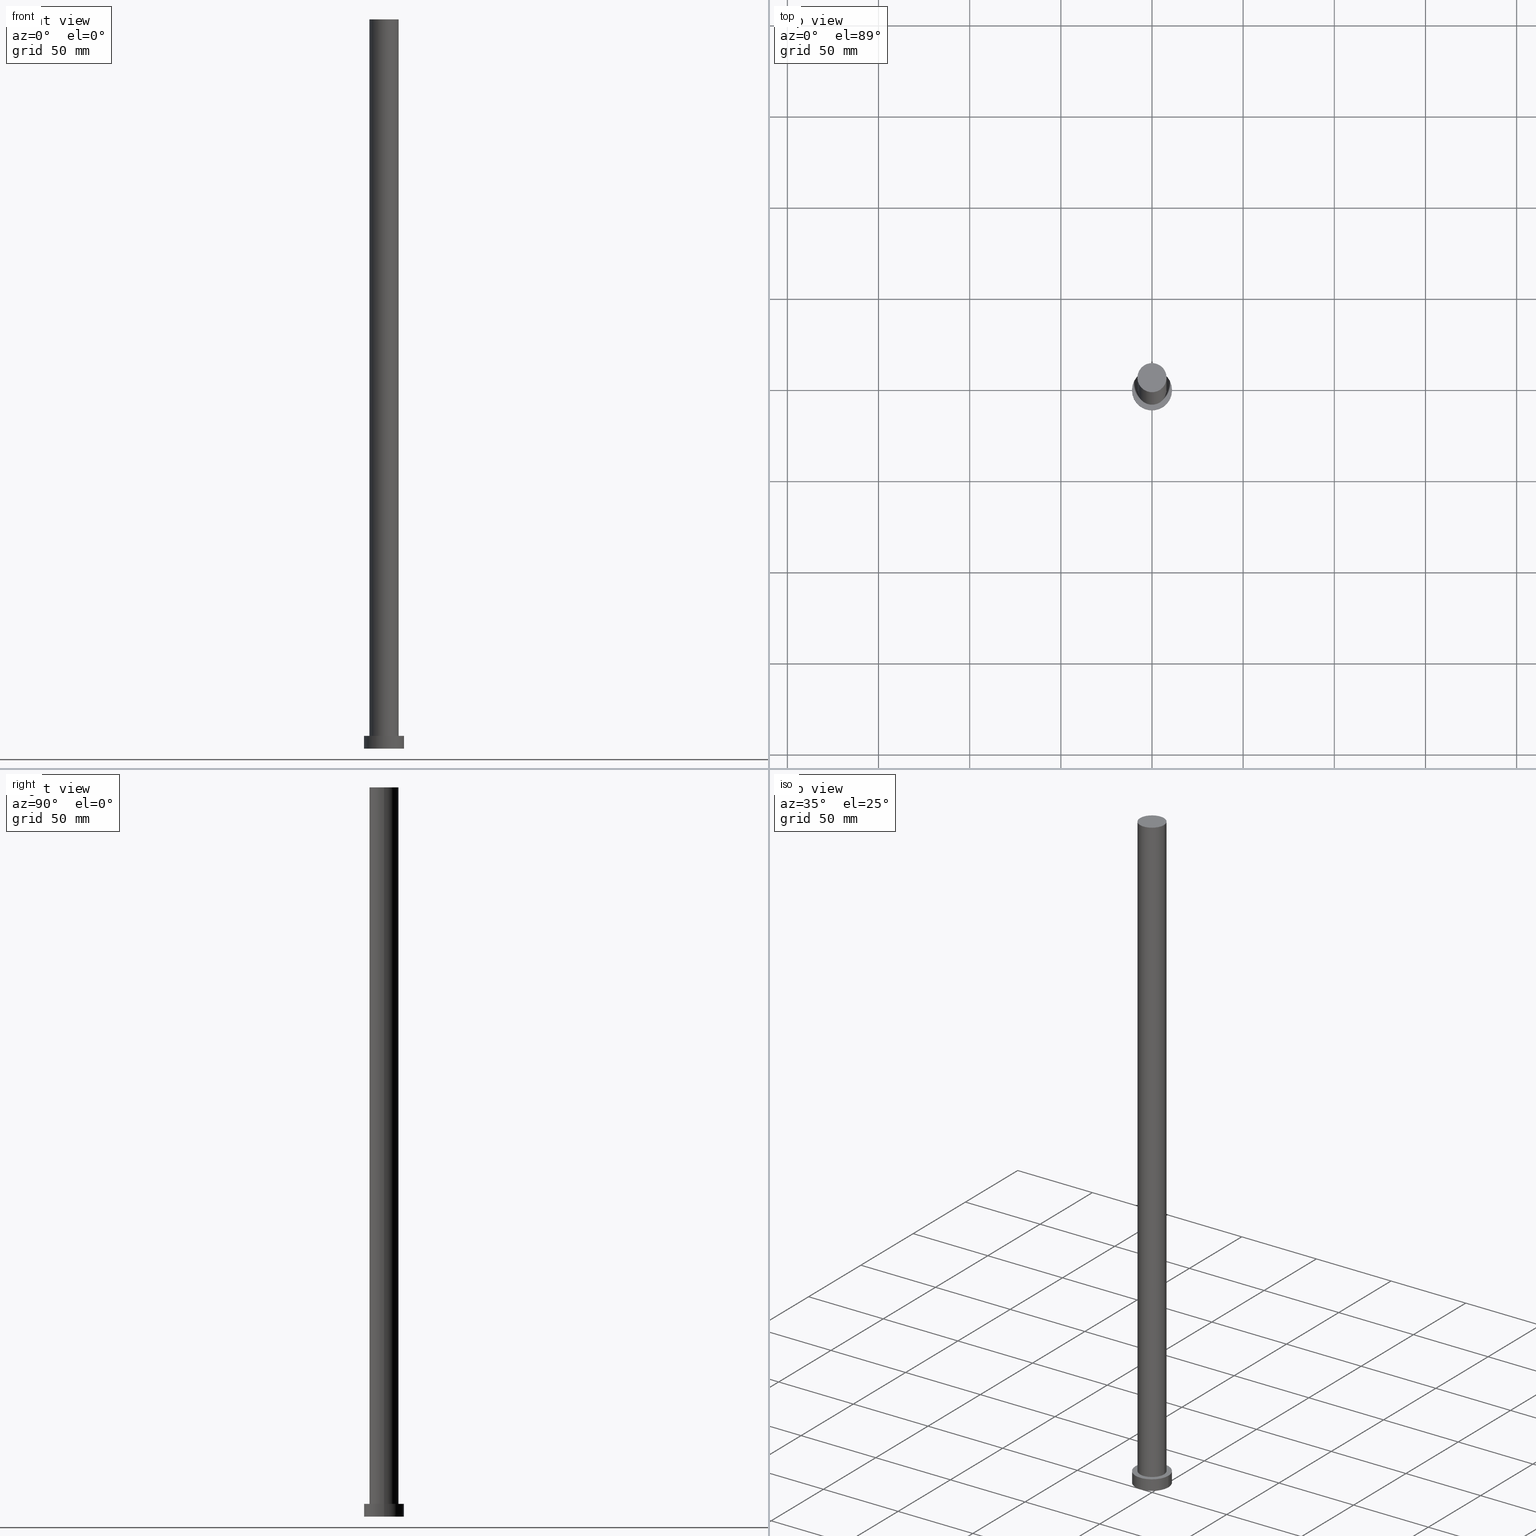
[diagram: canonical four-view strip — front | top / right | iso, engineering-drawing reading convention]
A machine part, canonical four-view strip (front | top / right | iso — engineering-drawing reading convention). The complete STEP part file that produces these views, byte-faithful:
ISO-10303-21;
HEADER;
FILE_DESCRIPTION (( 'STEP AP203' ),
    '1' );
FILE_NAME ('3162.STEP',
    '2023-02-13T07:37:01',
    ( '' ),
    ( '' ),
    'SwSTEP 2.0',
    'SolidWorks 2019',
    '' );
FILE_SCHEMA (( 'CONFIG_CONTROL_DESIGN' ));
ENDSEC;

DATA;
#1 = CALENDAR_DATE ( 2023, 13, 2 ) ;
#2 = FACE_OUTER_BOUND ( 'NONE', #128, .T. ) ;
#3 = PERSON_AND_ORGANIZATION ( #50, #232 ) ;
#4 = CARTESIAN_POINT ( 'NONE',  ( 8.000000000000000000, 9.797174393178825657E-16, 400.0000000000000000 ) ) ;
#5 = DATE_AND_TIME ( #88, #171 ) ;
#6 = CARTESIAN_POINT ( 'NONE',  ( 11.00000000000000000, 1.347111479062088405E-15, 7.000000000000000000 ) ) ;
#7 = ORIENTED_EDGE ( 'NONE', *, *, #120, .F. ) ;
#8 = CIRCLE ( 'NONE', #28, 11.00000000000000000 ) ;
#9 = CALENDAR_DATE ( 2023, 13, 2 ) ;
#10 = CARTESIAN_POINT ( 'NONE',  ( 0.000000000000000000, 0.000000000000000000, 7.000000000000000000 ) ) ;
#11 = EDGE_CURVE ( 'NONE', #113, #193, #190, .T. ) ;
#12 = VECTOR ( 'NONE', #157, 1000.000000000000000 ) ;
#13 = DIRECTION ( 'NONE',  ( 1.000000000000000000, 0.000000000000000000, 0.000000000000000000 ) ) ;
#14 = ORIENTED_EDGE ( 'NONE', *, *, #176, .F. ) ;
#15 =( NAMED_UNIT ( * ) SI_UNIT ( $, .STERADIAN. ) SOLID_ANGLE_UNIT ( ) );
#16 = CARTESIAN_POINT ( 'NONE',  ( 0.000000000000000000, 0.000000000000000000, 400.0000000000000000 ) ) ;
#17 = CC_DESIGN_PERSON_AND_ORGANIZATION_ASSIGNMENT ( #3, #143, ( #191 ) ) ;
#18 =( LENGTH_UNIT ( ) NAMED_UNIT ( * ) SI_UNIT ( .MILLI., .METRE. ) );
#19 = CARTESIAN_POINT ( 'NONE',  ( 0.000000000000000000, 0.000000000000000000, 7.000000000000000000 ) ) ;
#20 = DATE_AND_TIME ( #203, #175 ) ;
#21 = FACE_BOUND ( 'NONE', #173, .T. ) ;
#22 = ORIENTED_EDGE ( 'NONE', *, *, #246, .T. ) ;
#23 = CIRCLE ( 'NONE', #248, 8.000000000000000000 ) ;
#24 = APPROVAL_PERSON_ORGANIZATION ( #216, #25, #35 ) ;
#25 = APPROVAL ( #186, 'NEUR�EN�' ) ;
#26 = PERSON_AND_ORGANIZATION ( #50, #232 ) ;
#27 = VERTEX_POINT ( 'NONE', #78 ) ;
#28 = AXIS2_PLACEMENT_3D ( 'NONE', #19, #206, #43 ) ;
#29 = DIRECTION ( 'NONE',  ( 0.000000000000000000, 0.000000000000000000, 1.000000000000000000 ) ) ;
#30 = VERTEX_POINT ( 'NONE', #119 ) ;
#31 = ADVANCED_FACE ( 'NONE', ( #144 ), #77, .T. ) ;
#32 = CYLINDRICAL_SURFACE ( 'NONE', #239, 11.00000000000000000 ) ;
#33 = AXIS2_PLACEMENT_3D ( 'NONE', #116, #185, #63 ) ;
#34 = AXIS2_PLACEMENT_3D ( 'NONE', #55, #133, #110 ) ;
#35 = APPROVAL_ROLE ( '' ) ;
#36 = APPLICATION_PROTOCOL_DEFINITION ( 'international standard', 'config_control_design', 1994, #123 ) ;
#37 = CARTESIAN_POINT ( 'NONE',  ( 11.00000000000000000, 1.347111479062088405E-15, 7.000000000000000000 ) ) ;
#38 = EDGE_LOOP ( 'NONE', ( #167, #129 ) ) ;
#39 = APPROVAL_STATUS ( 'not_yet_approved' ) ;
#40 = DIRECTION ( 'NONE',  ( 1.000000000000000000, 0.000000000000000000, -0.000000000000000000 ) ) ;
#41 = PERSON_AND_ORGANIZATION ( #50, #232 ) ;
#42 = PERSON_AND_ORGANIZATION ( #50, #232 ) ;
#43 = DIRECTION ( 'NONE',  ( 1.000000000000000000, 0.000000000000000000, 0.000000000000000000 ) ) ;
#44 = ORIENTED_EDGE ( 'NONE', *, *, #243, .T. ) ;
#45 = DIRECTION ( 'NONE',  ( 1.000000000000000000, 0.000000000000000000, -0.000000000000000000 ) ) ;
#46 = UNCERTAINTY_MEASURE_WITH_UNIT (LENGTH_MEASURE( 1.000000000000000082E-05 ), #18, 'distance_accuracy_value', 'NONE');
#47 = DIRECTION ( 'NONE',  ( 1.000000000000000000, 0.000000000000000000, 0.000000000000000000 ) ) ;
#48 = CC_DESIGN_DATE_AND_TIME_ASSIGNMENT ( #210, #166, ( #214 ) ) ;
#49 = CIRCLE ( 'NONE', #231, 11.00000000000000000 ) ;
#50 = PERSON ( 'NEUR�EN�', 'NEUR�EN�', 'NEUR�EN�', ('NEUR�EN�'), ('NEUR�EN�'), ('NEUR�EN�') ) ;
#51 = DATE_AND_TIME ( #155, #245 ) ;
#52 = DIRECTION ( 'NONE',  ( 0.000000000000000000, 0.000000000000000000, 1.000000000000000000 ) ) ;
#53 = DIRECTION ( 'NONE',  ( -0.000000000000000000, -0.000000000000000000, -1.000000000000000000 ) ) ;
#54 = CC_DESIGN_DATE_AND_TIME_ASSIGNMENT ( #5, #241, ( #211 ) ) ;
#55 = CARTESIAN_POINT ( 'NONE',  ( 0.000000000000000000, 0.000000000000000000, 7.000000000000000000 ) ) ;
#56 = DIRECTION ( 'NONE',  ( 1.000000000000000000, 0.000000000000000000, 0.000000000000000000 ) ) ;
#57 = AXIS2_PLACEMENT_3D ( 'NONE', #208, #141, #188 ) ;
#58 = DIRECTION ( 'NONE',  ( -0.000000000000000000, -0.000000000000000000, -1.000000000000000000 ) ) ;
#59 = PRODUCT_RELATED_PRODUCT_CATEGORY ( 'detail', '', ( #103 ) ) ;
#60 = APPROVAL_ROLE ( '' ) ;
#61 = VERTEX_POINT ( 'NONE', #244 ) ;
#62 = ORIENTED_EDGE ( 'NONE', *, *, #84, .T. ) ;
#63 = DIRECTION ( 'NONE',  ( 1.000000000000000000, 0.000000000000000000, 0.000000000000000000 ) ) ;
#64 = CIRCLE ( 'NONE', #33, 11.00000000000000000 ) ;
#65 = CC_DESIGN_PERSON_AND_ORGANIZATION_ASSIGNMENT ( #225, #115, ( #191 ) ) ;
#66 = EDGE_LOOP ( 'NONE', ( #235, #161 ) ) ;
#67 = ORIENTED_EDGE ( 'NONE', *, *, #246, .F. ) ;
#68 = CC_DESIGN_APPROVAL ( #181, ( #191 ) ) ;
#69 = DIRECTION ( 'NONE',  ( -0.000000000000000000, -0.000000000000000000, -1.000000000000000000 ) ) ;
#70 = COORDINATED_UNIVERSAL_TIME_OFFSET ( 1, 0, .AHEAD. ) ;
#71 = CARTESIAN_POINT ( 'NONE',  ( 0.000000000000000000, 0.000000000000000000, 0.000000000000000000 ) ) ;
#72 = DATE_AND_TIME ( #1, #222 ) ;
#73 = CYLINDRICAL_SURFACE ( 'NONE', #170, 11.00000000000000000 ) ;
#74 = ADVANCED_FACE ( 'NONE', ( #202 ), #226, .T. ) ;
#75 = AXIS2_PLACEMENT_3D ( 'NONE', #16, #87, #237 ) ;
#76 = PERSON_AND_ORGANIZATION ( #50, #232 ) ;
#77 = PLANE ( 'NONE',  #229 ) ;
#78 = CARTESIAN_POINT ( 'NONE',  ( -11.00000000000000000, 0.000000000000000000, 0.000000000000000000 ) ) ;
#79 = PRODUCT_DEFINITION_SHAPE ( 'NONE', 'NONE',  #211 ) ;
#80 = CARTESIAN_POINT ( 'NONE',  ( 0.000000000000000000, 0.000000000000000000, 0.000000000000000000 ) ) ;
#81 = CARTESIAN_POINT ( 'NONE',  ( 0.000000000000000000, 0.000000000000000000, 400.0000000000000000 ) ) ;
#82 = ORIENTED_EDGE ( 'NONE', *, *, #96, .T. ) ;
#83 = VECTOR ( 'NONE', #53, 1000.000000000000000 ) ;
#84 = EDGE_CURVE ( 'NONE', #90, #61, #8, .T. ) ;
#85 = ORIENTED_EDGE ( 'NONE', *, *, #209, .F. ) ;
#86 = VECTOR ( 'NONE', #154, 1000.000000000000000 ) ;
#87 = DIRECTION ( 'NONE',  ( -0.000000000000000000, -0.000000000000000000, -1.000000000000000000 ) ) ;
#88 = CALENDAR_DATE ( 2023, 13, 2 ) ;
#89 = FACE_OUTER_BOUND ( 'NONE', #66, .T. ) ;
#90 = VERTEX_POINT ( 'NONE', #6 ) ;
#91 = APPROVAL_DATE_TIME ( #20, #181 ) ;
#92 = ORIENTED_EDGE ( 'NONE', *, *, #243, .F. ) ;
#93 = PERSON_AND_ORGANIZATION_ROLE ( 'creator' ) ;
#94 = DIRECTION ( 'NONE',  ( 0.000000000000000000, 0.000000000000000000, 1.000000000000000000 ) ) ;
#95 = CARTESIAN_POINT ( 'NONE',  ( -8.000000000000000000, 0.000000000000000000, 7.000000000000000000 ) ) ;
#96 = EDGE_CURVE ( 'NONE', #27, #242, #64, .T. ) ;
#97 = VERTEX_POINT ( 'NONE', #95 ) ;
#98 = DIRECTION ( 'NONE',  ( 1.000000000000000000, 0.000000000000000000, 0.000000000000000000 ) ) ;
#99 = CC_DESIGN_PERSON_AND_ORGANIZATION_ASSIGNMENT ( #26, #145, ( #214 ) ) ;
#100 = APPLICATION_CONTEXT ( 'configuration controlled 3d designs of mechanical parts and assemblies' ) ;
#101 = AXIS2_PLACEMENT_3D ( 'NONE', #240, #136, #56 ) ;
#102 = CC_DESIGN_PERSON_AND_ORGANIZATION_ASSIGNMENT ( #41, #183, ( #103 ) ) ;
#103 = PRODUCT ( '3162', '3162', '', ( #163 ) ) ;
#104 = CIRCLE ( 'NONE', #165, 8.000000000000000000 ) ;
#105 = APPROVAL_PERSON_ORGANIZATION ( #223, #181, #112 ) ;
#106 = EDGE_LOOP ( 'NONE', ( #85, #108, #189, #82 ) ) ;
#107 = FACE_OUTER_BOUND ( 'NONE', #106, .T. ) ;
#108 = ORIENTED_EDGE ( 'NONE', *, *, #156, .F. ) ;
#109 = APPROVAL_DATE_TIME ( #72, #233 ) ;
#110 = DIRECTION ( 'NONE',  ( 1.000000000000000000, 0.000000000000000000, 0.000000000000000000 ) ) ;
#111 = DIRECTION ( 'NONE',  ( 0.000000000000000000, 0.000000000000000000, 1.000000000000000000 ) ) ;
#112 = APPROVAL_ROLE ( '' ) ;
#113 = VERTEX_POINT ( 'NONE', #4 ) ;
#114 = COORDINATED_UNIVERSAL_TIME_OFFSET ( 1, 0, .AHEAD. ) ;
#115 = PERSON_AND_ORGANIZATION_ROLE ( 'design_supplier' ) ;
#116 = CARTESIAN_POINT ( 'NONE',  ( 0.000000000000000000, 0.000000000000000000, 0.000000000000000000 ) ) ;
#117 = CC_DESIGN_PERSON_AND_ORGANIZATION_ASSIGNMENT ( #42, #93, ( #211 ) ) ;
#118 = COORDINATED_UNIVERSAL_TIME_OFFSET ( 1, 0, .AHEAD. ) ;
#119 = CARTESIAN_POINT ( 'NONE',  ( 8.000000000000000000, 9.797174393178825657E-16, 7.000000000000000000 ) ) ;
#120 = EDGE_CURVE ( 'NONE', #30, #97, #23, .T. ) ;
#121 = AXIS2_PLACEMENT_3D ( 'NONE', #71, #52, #252 ) ;
#122 = CIRCLE ( 'NONE', #34, 8.000000000000000000 ) ;
#123 = APPLICATION_CONTEXT ( 'configuration controlled 3d designs of mechanical parts and assemblies' ) ;
#124 = CARTESIAN_POINT ( 'NONE',  ( 0.000000000000000000, 0.000000000000000000, 7.000000000000000000 ) ) ;
#125 = DIRECTION ( 'NONE',  ( 0.000000000000000000, 0.000000000000000000, 1.000000000000000000 ) ) ;
#126 =( GEOMETRIC_REPRESENTATION_CONTEXT ( 3 ) GLOBAL_UNCERTAINTY_ASSIGNED_CONTEXT ( ( #46 ) ) GLOBAL_UNIT_ASSIGNED_CONTEXT ( ( #18, #187, #15 ) ) REPRESENTATION_CONTEXT ( 'NONE', 'WORKASPACE' ) );
#127 = ADVANCED_FACE ( 'NONE', ( #2 ), #73, .T. ) ;
#128 = EDGE_LOOP ( 'NONE', ( #194, #132, #184, #14 ) ) ;
#129 = ORIENTED_EDGE ( 'NONE', *, *, #11, .T. ) ;
#130 = ADVANCED_FACE ( 'NONE', ( #21, #247 ), #230, .T. ) ;
#131 = CLOSED_SHELL ( 'NONE', ( #204, #127, #172, #130, #198, #74, #31 ) ) ;
#132 = ORIENTED_EDGE ( 'NONE', *, *, #209, .T. ) ;
#133 = DIRECTION ( 'NONE',  ( 0.000000000000000000, 0.000000000000000000, 1.000000000000000000 ) ) ;
#134 = CARTESIAN_POINT ( 'NONE',  ( -8.000000000000000000, 0.000000000000000000, 400.0000000000000000 ) ) ;
#135 = CYLINDRICAL_SURFACE ( 'NONE', #75, 8.000000000000000000 ) ;
#136 = DIRECTION ( 'NONE',  ( 0.000000000000000000, 0.000000000000000000, 1.000000000000000000 ) ) ;
#137 = CARTESIAN_POINT ( 'NONE',  ( 0.000000000000000000, 0.000000000000000000, 400.0000000000000000 ) ) ;
#138 = CC_DESIGN_APPROVAL ( #233, ( #211 ) ) ;
#139 = CARTESIAN_POINT ( 'NONE',  ( 8.000000000000000000, 9.797174393178825657E-16, 400.0000000000000000 ) ) ;
#140 = COORDINATED_UNIVERSAL_TIME_OFFSET ( 1, 0, .AHEAD. ) ;
#141 = DIRECTION ( 'NONE',  ( -0.000000000000000000, -0.000000000000000000, -1.000000000000000000 ) ) ;
#142 = CARTESIAN_POINT ( 'NONE',  ( 0.000000000000000000, 0.000000000000000000, 400.0000000000000000 ) ) ;
#143 = PERSON_AND_ORGANIZATION_ROLE ( 'creator' ) ;
#144 = FACE_OUTER_BOUND ( 'NONE', #38, .T. ) ;
#145 = PERSON_AND_ORGANIZATION_ROLE ( 'classification_officer' ) ;
#146 = DIRECTION ( 'NONE',  ( 0.000000000000000000, 0.000000000000000000, 1.000000000000000000 ) ) ;
#147 = EDGE_CURVE ( 'NONE', #242, #27, #250, .T. ) ;
#148 = CC_DESIGN_APPROVAL ( #25, ( #214 ) ) ;
#149 = CARTESIAN_POINT ( 'NONE',  ( 0.000000000000000000, 0.000000000000000000, 7.000000000000000000 ) ) ;
#150 = EDGE_CURVE ( 'NONE', #193, #113, #104, .T. ) ;
#151 = SHAPE_DEFINITION_REPRESENTATION ( #79, #218 ) ;
#152 = LINE ( 'NONE', #177, #83 ) ;
#153 = APPROVAL_PERSON_ORGANIZATION ( #76, #233, #60 ) ;
#154 = DIRECTION ( 'NONE',  ( -0.000000000000000000, -0.000000000000000000, -1.000000000000000000 ) ) ;
#155 = CALENDAR_DATE ( 2023, 13, 2 ) ;
#156 = EDGE_CURVE ( 'NONE', #61, #90, #49, .T. ) ;
#157 = DIRECTION ( 'NONE',  ( -0.000000000000000000, -0.000000000000000000, -1.000000000000000000 ) ) ;
#158 = CARTESIAN_POINT ( 'NONE',  ( 0.000000000000000000, 0.000000000000000000, 7.000000000000000000 ) ) ;
#159 = AXIS2_PLACEMENT_3D ( 'NONE', #10, #29, #45 ) ;
#160 = APPLICATION_PROTOCOL_DEFINITION ( 'international standard', 'config_control_design', 1994, #100 ) ;
#161 = ORIENTED_EDGE ( 'NONE', *, *, #147, .F. ) ;
#162 = DIRECTION ( 'NONE',  ( 1.000000000000000000, 0.000000000000000000, 0.000000000000000000 ) ) ;
#163 = MECHANICAL_CONTEXT ( 'NONE', #123, 'mechanical' ) ;
#164 = CARTESIAN_POINT ( 'NONE',  ( 0.000000000000000000, 0.000000000000000000, 7.000000000000000000 ) ) ;
#165 = AXIS2_PLACEMENT_3D ( 'NONE', #81, #169, #47 ) ;
#166 = DATE_TIME_ROLE ( 'classification_date' ) ;
#167 = ORIENTED_EDGE ( 'NONE', *, *, #150, .T. ) ;
#168 = DESIGN_CONTEXT ( 'detailed design', #100, 'design' ) ;
#169 = DIRECTION ( 'NONE',  ( 0.000000000000000000, 0.000000000000000000, 1.000000000000000000 ) ) ;
#170 = AXIS2_PLACEMENT_3D ( 'NONE', #158, #58, #205 ) ;
#171 = LOCAL_TIME ( 8, 37, 1.000000000000000000, #140 ) ;
#172 = ADVANCED_FACE ( 'NONE', ( #107 ), #32, .T. ) ;
#173 = EDGE_LOOP ( 'NONE', ( #221, #7 ) ) ;
#174 = AXIS2_PLACEMENT_3D ( 'NONE', #80, #192, #98 ) ;
#175 = LOCAL_TIME ( 8, 37, 1.000000000000000000, #253 ) ;
#176 = EDGE_CURVE ( 'NONE', #61, #27, #152, .T. ) ;
#177 = CARTESIAN_POINT ( 'NONE',  ( -11.00000000000000000, 0.000000000000000000, 7.000000000000000000 ) ) ;
#178 = AXIS2_PLACEMENT_3D ( 'NONE', #137, #111, #162 ) ;
#179 = VECTOR ( 'NONE', #219, 1000.000000000000000 ) ;
#180 = LINE ( 'NONE', #37, #86 ) ;
#181 = APPROVAL ( #39, 'NEUR�EN�' ) ;
#182 = DIRECTION ( 'NONE',  ( 1.000000000000000000, 0.000000000000000000, 0.000000000000000000 ) ) ;
#183 = PERSON_AND_ORGANIZATION_ROLE ( 'design_owner' ) ;
#184 = ORIENTED_EDGE ( 'NONE', *, *, #147, .T. ) ;
#185 = DIRECTION ( 'NONE',  ( 0.000000000000000000, 0.000000000000000000, 1.000000000000000000 ) ) ;
#186 = APPROVAL_STATUS ( 'not_yet_approved' ) ;
#187 =( NAMED_UNIT ( * ) PLANE_ANGLE_UNIT ( ) SI_UNIT ( $, .RADIAN. ) );
#188 = DIRECTION ( 'NONE',  ( -1.000000000000000000, 0.000000000000000000, 0.000000000000000000 ) ) ;
#189 = ORIENTED_EDGE ( 'NONE', *, *, #176, .T. ) ;
#190 = CIRCLE ( 'NONE', #178, 8.000000000000000000 ) ;
#191 = PRODUCT_DEFINITION_FORMATION_WITH_SPECIFIED_SOURCE ( 'LIBOVOLN�', '', #103, .NOT_KNOWN. ) ;
#192 = DIRECTION ( 'NONE',  ( 0.000000000000000000, 0.000000000000000000, 1.000000000000000000 ) ) ;
#193 = VERTEX_POINT ( 'NONE', #134 ) ;
#194 = ORIENTED_EDGE ( 'NONE', *, *, #84, .F. ) ;
#195 = EDGE_LOOP ( 'NONE', ( #92, #215, #22, #197 ) ) ;
#196 = APPROVAL_DATE_TIME ( #51, #25 ) ;
#197 = ORIENTED_EDGE ( 'NONE', *, *, #228, .T. ) ;
#198 = ADVANCED_FACE ( 'NONE', ( #89 ), #254, .F. ) ;
#199 = FACE_OUTER_BOUND ( 'NONE', #224, .T. ) ;
#200 = CC_DESIGN_SECURITY_CLASSIFICATION ( #214, ( #191 ) ) ;
#201 = LINE ( 'NONE', #255, #12 ) ;
#202 = FACE_OUTER_BOUND ( 'NONE', #195, .T. ) ;
#203 = CALENDAR_DATE ( 2023, 13, 2 ) ;
#204 = ADVANCED_FACE ( 'NONE', ( #199 ), #135, .T. ) ;
#205 = DIRECTION ( 'NONE',  ( -1.000000000000000000, 0.000000000000000000, 0.000000000000000000 ) ) ;
#206 = DIRECTION ( 'NONE',  ( 0.000000000000000000, 0.000000000000000000, 1.000000000000000000 ) ) ;
#207 = SECURITY_CLASSIFICATION_LEVEL ( 'unclassified' ) ;
#208 = CARTESIAN_POINT ( 'NONE',  ( 0.000000000000000000, 0.000000000000000000, 400.0000000000000000 ) ) ;
#209 = EDGE_CURVE ( 'NONE', #90, #242, #180, .T. ) ;
#210 = DATE_AND_TIME ( #9, #251 ) ;
#211 = PRODUCT_DEFINITION ( 'NEZN�M�', '', #191, #168 ) ;
#212 = MANIFOLD_SOLID_BREP ( 'P�idat vysunut�m3', #131 ) ;
#213 = ORIENTED_EDGE ( 'NONE', *, *, #11, .F. ) ;
#214 = SECURITY_CLASSIFICATION ( '', '', #207 ) ;
#215 = ORIENTED_EDGE ( 'NONE', *, *, #150, .F. ) ;
#216 = PERSON_AND_ORGANIZATION ( #50, #232 ) ;
#217 = LINE ( 'NONE', #139, #179 ) ;
#218 = ADVANCED_BREP_SHAPE_REPRESENTATION ( '3162', ( #212, #101 ), #126 ) ;
#219 = DIRECTION ( 'NONE',  ( -0.000000000000000000, -0.000000000000000000, -1.000000000000000000 ) ) ;
#220 = APPROVAL_STATUS ( 'not_yet_approved' ) ;
#221 = ORIENTED_EDGE ( 'NONE', *, *, #228, .F. ) ;
#222 = LOCAL_TIME ( 8, 37, 1.000000000000000000, #114 ) ;
#223 = PERSON_AND_ORGANIZATION ( #50, #232 ) ;
#224 = EDGE_LOOP ( 'NONE', ( #213, #44, #249, #67 ) ) ;
#225 = PERSON_AND_ORGANIZATION ( #50, #232 ) ;
#226 = CYLINDRICAL_SURFACE ( 'NONE', #57, 8.000000000000000000 ) ;
#227 = EDGE_LOOP ( 'NONE', ( #234, #62 ) ) ;
#228 = EDGE_CURVE ( 'NONE', #97, #30, #122, .T. ) ;
#229 = AXIS2_PLACEMENT_3D ( 'NONE', #142, #94, #40 ) ;
#230 = PLANE ( 'NONE',  #159 ) ;
#231 = AXIS2_PLACEMENT_3D ( 'NONE', #124, #125, #13 ) ;
#232 = ORGANIZATION ( 'NEUR�EN�', 'NEUR�EN�', '' ) ;
#233 = APPROVAL ( #220, 'NEUR�EN�' ) ;
#234 = ORIENTED_EDGE ( 'NONE', *, *, #156, .T. ) ;
#235 = ORIENTED_EDGE ( 'NONE', *, *, #96, .F. ) ;
#236 = DIRECTION ( 'NONE',  ( -1.000000000000000000, 0.000000000000000000, 0.000000000000000000 ) ) ;
#237 = DIRECTION ( 'NONE',  ( -1.000000000000000000, 0.000000000000000000, 0.000000000000000000 ) ) ;
#238 = CARTESIAN_POINT ( 'NONE',  ( 11.00000000000000000, 1.347111479062088405E-15, 0.000000000000000000 ) ) ;
#239 = AXIS2_PLACEMENT_3D ( 'NONE', #149, #69, #236 ) ;
#240 = CARTESIAN_POINT ( 'NONE',  ( 0.000000000000000000, 0.000000000000000000, 0.000000000000000000 ) ) ;
#241 = DATE_TIME_ROLE ( 'creation_date' ) ;
#242 = VERTEX_POINT ( 'NONE', #238 ) ;
#243 = EDGE_CURVE ( 'NONE', #113, #30, #217, .T. ) ;
#244 = CARTESIAN_POINT ( 'NONE',  ( -11.00000000000000000, 0.000000000000000000, 7.000000000000000000 ) ) ;
#245 = LOCAL_TIME ( 8, 37, 1.000000000000000000, #70 ) ;
#246 = EDGE_CURVE ( 'NONE', #193, #97, #201, .T. ) ;
#247 = FACE_OUTER_BOUND ( 'NONE', #227, .T. ) ;
#248 = AXIS2_PLACEMENT_3D ( 'NONE', #164, #146, #182 ) ;
#249 = ORIENTED_EDGE ( 'NONE', *, *, #120, .T. ) ;
#250 = CIRCLE ( 'NONE', #174, 11.00000000000000000 ) ;
#251 = LOCAL_TIME ( 8, 37, 1.000000000000000000, #118 ) ;
#252 = DIRECTION ( 'NONE',  ( 1.000000000000000000, 0.000000000000000000, -0.000000000000000000 ) ) ;
#253 = COORDINATED_UNIVERSAL_TIME_OFFSET ( 1, 0, .AHEAD. ) ;
#254 = PLANE ( 'NONE',  #121 ) ;
#255 = CARTESIAN_POINT ( 'NONE',  ( -8.000000000000000000, 0.000000000000000000, 400.0000000000000000 ) ) ;
ENDSEC;
END-ISO-10303-21;
